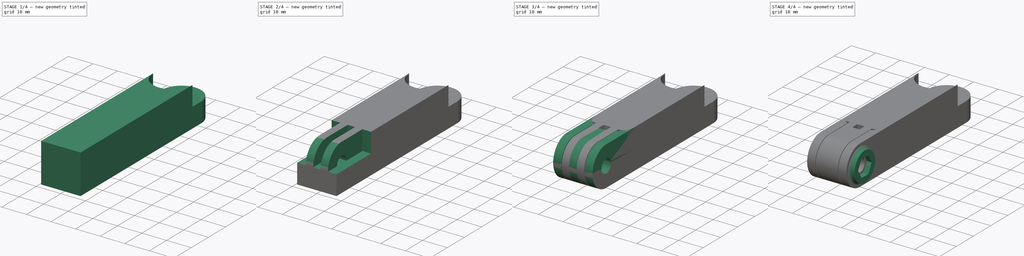
[diagram: build sequence overview — one tinted view per stage of 4, left to right]
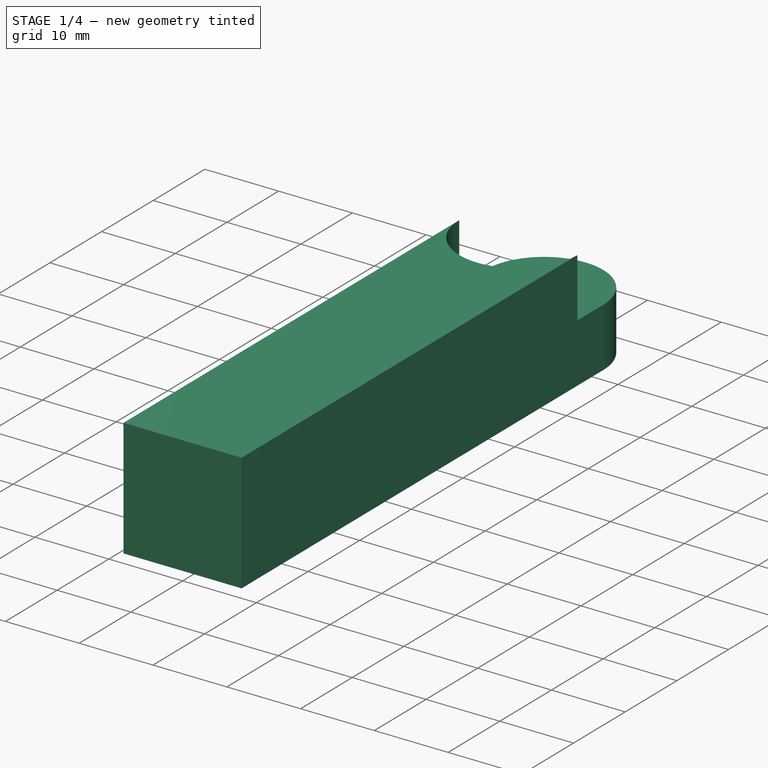
[diagram: stage 1 of 4 — iso view after this stage's code; geometry added in this stage tinted green]
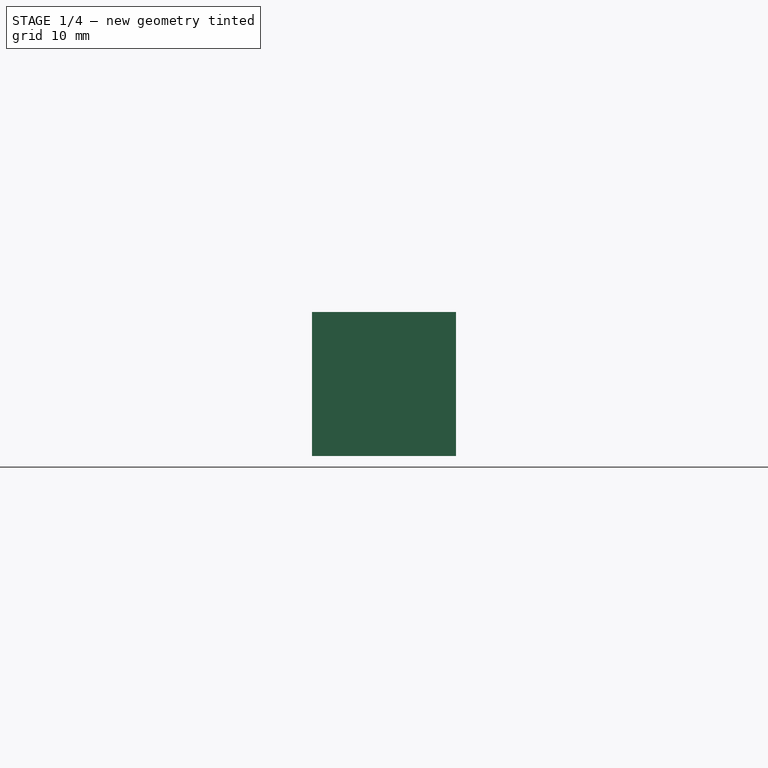
[diagram: stage 1 of 4 — front view after this stage's code; geometry added in this stage tinted green]
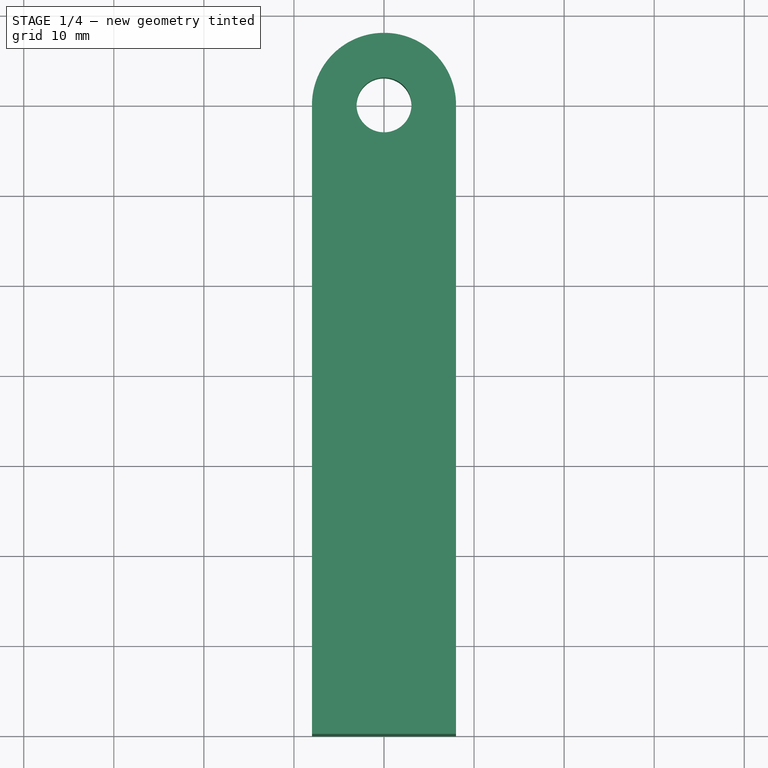
[diagram: stage 1 of 4 — top view after this stage's code; geometry added in this stage tinted green]
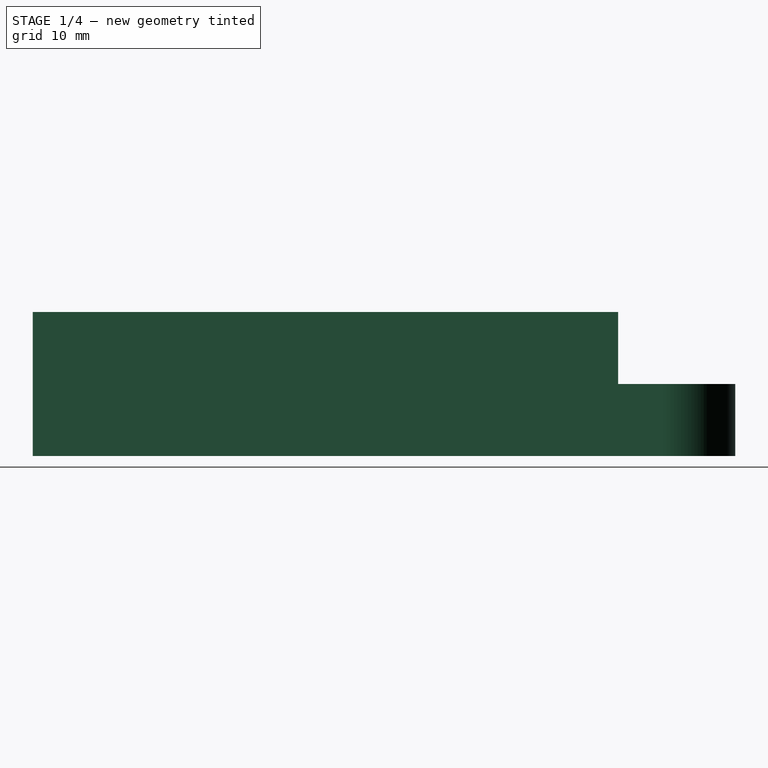
[diagram: stage 1 of 4 — right view after this stage's code; geometry added in this stage tinted green]
FCSTD DOCUMENT  (FreeCAD 0.22R38127 (Git))
Label: gopro angle arm
License: All rights reserved
LicenseURL: http://en.wikipedia.org/wiki/All_rights_reserved
objects: Sketcher::SketchObject×9, PartDesign::Pad×5, PartDesign::Pocket×4, PartDesign::Body×2, PartDesign::Plane×1, PartDesign::Fillet×1
note: 32 computed .brp shape members not serialized (recipe doc carries the construction recipe); baked Part::Feature solids carry a one-line shape summary decoded from their .brp

FEATURE [PartDesign::Body] Body  label="upper"
  AllowCompound = false
  Group = -> [Sketch,Pad,Sketch002,Pad001,Sketch003,Pocket,Sketch004,Pocket001,DatumPlane,Sketch005,Pad002,Fillet]
  Origin = -> Origin
  Tip = -> Fillet
FEATURE [Sketcher::SketchObject] Sketch006
  AttachmentSupport = -> [XY_Plane001]
  FullyConstrained = true
  MapMode = 5
  sketch-geometry (6):
    g0: LineSegment StartX=8 StartY=0 StartZ=0 EndX=-8 EndY=0 EndZ=0
    g1: LineSegment StartX=-8 StartY=0 StartZ=0 EndX=-8 EndY=70 EndZ=0
    g2: LineSegment StartX=8 StartY=0 StartZ=0 EndX=8 EndY=70 EndZ=0
    g3: ArcOfCircle CenterX=0 CenterY=70 CenterZ=0 NormalX=0 NormalY=0 NormalZ=1 AngleXU=0 Radius=8 StartAngle=4e-16 EndAngle=3.14159
    g4: Circle CenterX=0 CenterY=70 CenterZ=0 NormalX=0 NormalY=0 NormalZ=1 AngleXU=0 Radius=3.05
    g5: GeomPoint X=0 Y=70 Z=0
  constraints (14):
    c: Coincident(g0,g1)
    c: Vertical(g1)
    c: Coincident(g0,g2)
    c: Vertical(g2)
    c: PointOnObject(g3,g-2)
    c: Tangent(g3,g1) = 1.5708
    c: Tangent(g3,g2) = -1.5708
    c: DistanceY(g1,g1) = 70
    c: Horizontal(g0)
    c: PointOnObject(g0,g-1)
    c: DistanceX(g0,g0) = 16
    c: Coincident(g4,g3)
    c: Diameter(g4) = 6.1
    c: Coincident(g5,g3)
FEATURE [PartDesign::Pad] Pad003
  Direction = (0,0,1)
  Length = 8
  Length2 = 10
  Profile = -> Sketch006
  ReferenceAxis = -> Sketch006 [N_Axis]
  Suppressed = false
  Type = 0
FEATURE [Sketcher::SketchObject] Sketch007
  AttachmentSupport = -> [XY_Plane001]
  ExternalGeometry = -> [Pad003]
  FullyConstrained = true
  MapMode = 5
  sketch-geometry (4):
    g0: LineSegment StartX=-8 StartY=65 StartZ=0 EndX=-8 EndY=0 EndZ=0
    g1: LineSegment StartX=-8 StartY=0 StartZ=0 EndX=8 EndY=0 EndZ=0
    g2: LineSegment StartX=8 StartY=0 StartZ=0 EndX=8 EndY=65 EndZ=0
    g3: ArcOfCircle CenterX=0 CenterY=65 CenterZ=0 NormalX=0 NormalY=0 NormalZ=1 AngleXU=0 Radius=8 StartAngle=3.14159 EndAngle=6.28319
  constraints (12):
    c: Coincident(g0,g1)
    c: Coincident(g1,g2)
    c: Vertical(g0)
    c: Vertical(g2)
    c: Horizontal(g1)
    c: Coincident(g1,g-4)
    c: Coincident(g0,g3)
    c: Coincident(g3,g2)
    c: Horizontal(g2,g0)
    c: Horizontal(g0,g3)
    c: PointOnObject(g3,g-2)
    c: DistanceY(g-1,g3) = 65
FEATURE [PartDesign::Pad] Pad004
  BaseFeature = -> Pad003
  Direction = (0,0,1)
  Length = 16
  Length2 = 10
  Profile = -> Sketch007
  ReferenceAxis = -> Sketch007 [N_Axis]
  Suppressed = false
  Type = 0
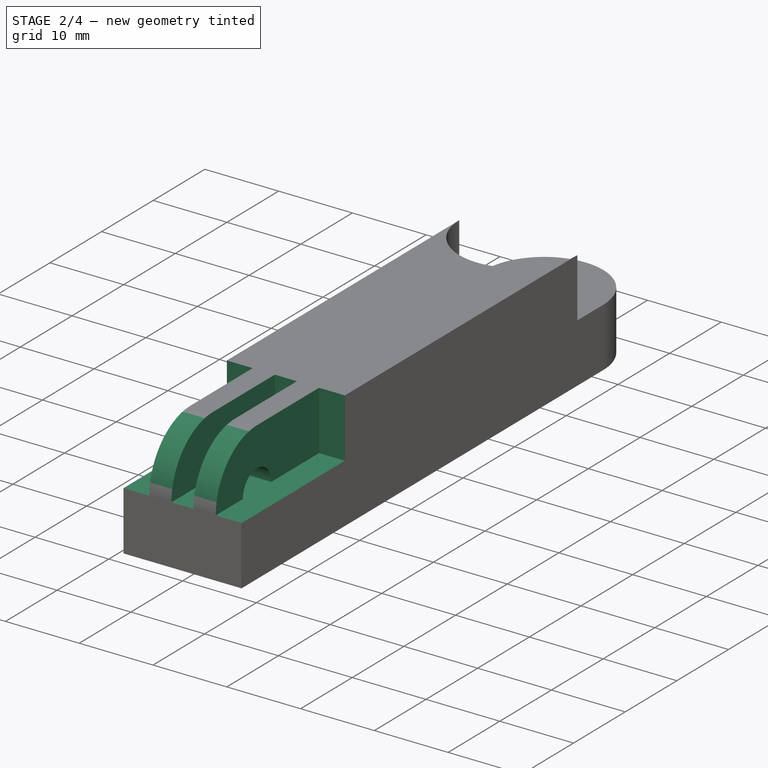
[diagram: stage 2 of 4 — iso view after this stage's code; geometry added in this stage tinted green]
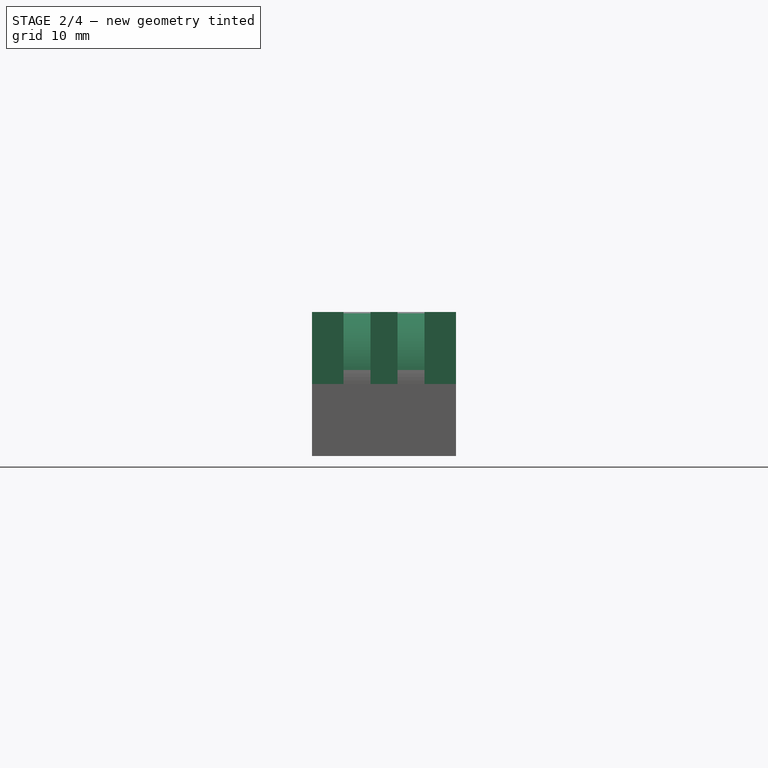
[diagram: stage 2 of 4 — front view after this stage's code; geometry added in this stage tinted green]
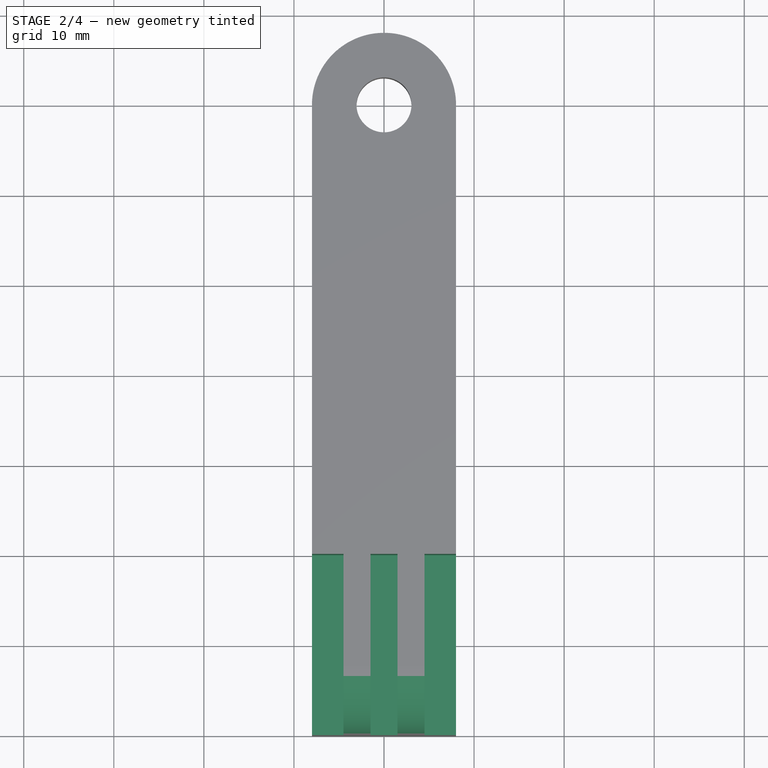
[diagram: stage 2 of 4 — top view after this stage's code; geometry added in this stage tinted green]
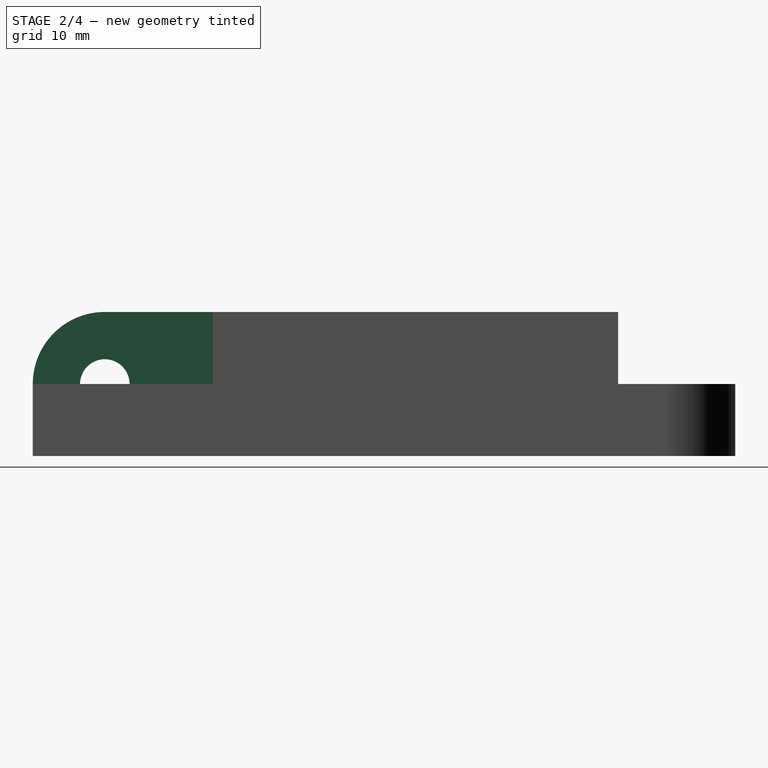
[diagram: stage 2 of 4 — right view after this stage's code; geometry added in this stage tinted green]
FEATURE [Sketcher::SketchObject] Sketch
  AttachmentSupport = -> [XY_Plane]
  FullyConstrained = true
  MapMode = 5
  sketch-geometry (6):
    g0: LineSegment StartX=8 StartY=0 StartZ=0 EndX=-8 EndY=0 EndZ=0
    g1: LineSegment StartX=-8 StartY=0 StartZ=0 EndX=-8 EndY=30 EndZ=0
    g2: LineSegment StartX=8 StartY=0 StartZ=0 EndX=8 EndY=30 EndZ=0
    g3: ArcOfCircle CenterX=0 CenterY=30 CenterZ=0 NormalX=0 NormalY=0 NormalZ=1 AngleXU=0 Radius=8 StartAngle=0 EndAngle=3.14159
    g4: Circle CenterX=0 CenterY=30 CenterZ=0 NormalX=0 NormalY=0 NormalZ=1 AngleXU=0 Radius=3.05
    g5: GeomPoint X=0 Y=30 Z=0
  constraints (14):
    c: Coincident(g0,g1)
    c: Vertical(g1)
    c: Coincident(g0,g2)
    c: Vertical(g2)
    c: PointOnObject(g3,g-2)
    c: Tangent(g3,g1) = 1.5708
    c: Tangent(g3,g2) = -1.5708
    c: DistanceY(g1,g1) = 30
    c: Horizontal(g0)
    c: PointOnObject(g0,g-1)
    c: DistanceX(g0,g0) = 16
    c: Coincident(g4,g3)
    c: Diameter(g4) = 6.1
    c: Coincident(g5,g3)
FEATURE [PartDesign::Pad] Pad
  Direction = (0,0,1)
  Length = 8
  Length2 = 10
  Profile = -> Sketch
  ReferenceAxis = -> Sketch [N_Axis]
  Suppressed = false
  Type = 0
FEATURE [Sketcher::SketchObject] Sketch008
  AttachmentSupport = -> [XY_Plane001]
  ExternalGeometry = -> [Pad004]
  FullyConstrained = true
  MapMode = 5
  sketch-geometry (12):
    g0: LineSegment StartX=4.5 StartY=0 StartZ=0 EndX=4.5 EndY=20 EndZ=0
    g1: LineSegment StartX=-4.5 StartY=20 StartZ=0 EndX=-4.5 EndY=0 EndZ=0
    g2: LineSegment StartX=-4.5 StartY=20 StartZ=0 EndX=-8 EndY=20 EndZ=0
    g3: LineSegment StartX=-8 StartY=20 StartZ=0 EndX=-8 EndY=0 EndZ=0
    g4: LineSegment StartX=4.5 StartY=20 StartZ=0 EndX=8 EndY=20 EndZ=0
    g5: LineSegment StartX=8 StartY=20 StartZ=0 EndX=8 EndY=0 EndZ=0
    g6: LineSegment StartX=-1.5 StartY=0 StartZ=0 EndX=-1.5 EndY=20 EndZ=0
    g7: LineSegment StartX=-1.5 StartY=20 StartZ=0 EndX=1.5 EndY=20 EndZ=0
    g8: LineSegment StartX=1.5 StartY=20 StartZ=0 EndX=1.5 EndY=0 EndZ=0
    g9: LineSegment StartX=-4.5 StartY=0 StartZ=0 EndX=-8 EndY=0 EndZ=0
    g10: LineSegment StartX=4.5 StartY=0 StartZ=0 EndX=8 EndY=0 EndZ=0
    g11: LineSegment StartX=-1.5 StartY=0 StartZ=0 EndX=1.5 EndY=0 EndZ=0
  constraints (32):
    c: PointOnObject(g0,g-1)
    c: Vertical(g0)
    c: PointOnObject(g6,g-1)
    c: PointOnObject(g1,g-1)
    c: Vertical(g1)
    c: Symmetric(g1,g0,g-2)
    c: DistanceY(g1,g1) = 20
    c: Coincident(g2,g1)
    c: PointOnObject(g2,g-4)
    c: Horizontal(g2)
    c: Coincident(g3,g2)
    c: Coincident(g3,g-4)
    c: Coincident(g4,g0)
    c: PointOnObject(g4,g-3)
    c: Horizontal(g4)
    c: Coincident(g5,g4)
    c: Coincident(g5,g-3)
    c: Vertical(g6)
    c: Coincident(g7,g6)
    c: Horizontal(g7)
    c: Coincident(g8,g7)
    c: Vertical(g8)
    c: Horizontal(g6,g1)
    c: Symmetric(g6,g8,g-2)
    c: Coincident(g9,g1)
    c: Coincident(g9,g3)
    c: Coincident(g10,g0)
    c: Coincident(g10,g5)
    c: Coincident(g11,g6)
    c: Coincident(g11,g8)
    c: DistanceX(g1,g6) = 3
    c: DistanceX(g6,g8) = 3
FEATURE [PartDesign::Pocket] Pocket002
  BaseFeature = -> Pad004
  Direction = (0,0,-1)
  Length = 5
  Length2 = 5
  Midplane = true
  Profile = -> Sketch008
  ReferenceAxis = -> Sketch008 [N_Axis]
  Suppressed = false
  Type = 1
FEATURE [Sketcher::SketchObject] Sketch009
  AttachmentSupport = -> [YZ_Plane001]
  ExternalGeometry = -> [Pocket002]
  FullyConstrained = true
  MapMode = 5
  Placement = pos=(0,0,0) rot=(0.57735,0.57735,0.57735;2.0944rad)
  sketch-geometry (5):
    g0: Circle CenterX=8 CenterY=8 CenterZ=0 NormalX=0 NormalY=0 NormalZ=1 AngleXU=0 Radius=2.75
    g1: ArcOfCircle CenterX=8 CenterY=8 CenterZ=0 NormalX=0 NormalY=0 NormalZ=1 AngleXU=0 Radius=8 StartAngle=1.5708 EndAngle=4.71239
    g2: LineSegment StartX=8 StartY=16 StartZ=0 EndX=0 EndY=16 EndZ=0
    g3: LineSegment StartX=0 StartY=16 StartZ=0 EndX=0 EndY=0 EndZ=0
    g4: LineSegment StartX=0 StartY=0 StartZ=0 EndX=8 EndY=0 EndZ=0
  constraints (14):
    c: Diameter(g0) = 5.5
    c: DistanceY(g-1,g0) = 8
    c: DistanceX(g-1,g0) = 8
    c: Coincident(g1,g0)
    c: PointOnObject(g1,g-1)
    c: Vertical(g1,g0)
    c: Vertical(g1,g0)
    c: Coincident(g1,g2)
    c: Coincident(g2,g3)
    c: Coincident(g3,g-1)
    c: Vertical(g3)
    c: Coincident(g3,g4)
    c: Coincident(g4,g1)
    c: Horizontal(g2)
FEATURE [PartDesign::Pocket] Pocket003
  BaseFeature = -> Pocket002
  Direction = (-1,0,0)
  Length = 5
  Length2 = 5
  Midplane = true
  Profile = -> Sketch009
  ReferenceAxis = -> Sketch009 [N_Axis]
  Suppressed = false
  Type = 1
FEATURE [PartDesign::Body] Body001  label="lower"
  AllowCompound = false
  Group = -> [Sketch006,Pad003,Sketch007,Pad004,Sketch008,Pocket002,Sketch009,Pocket003]
  Origin = -> Origin001
  Tip = -> Pocket003
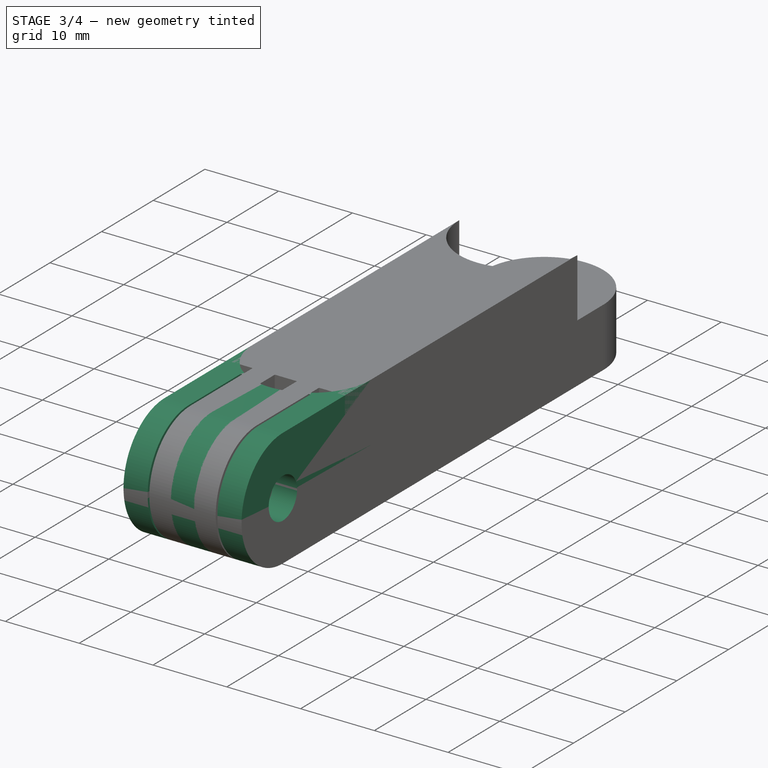
[diagram: stage 3 of 4 — iso view after this stage's code; geometry added in this stage tinted green]
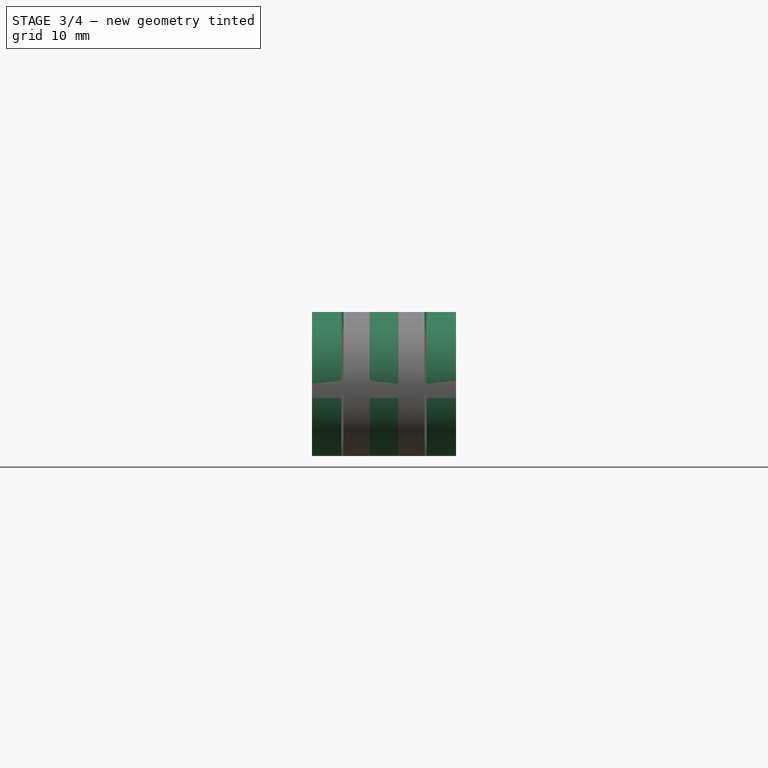
[diagram: stage 3 of 4 — front view after this stage's code; geometry added in this stage tinted green]
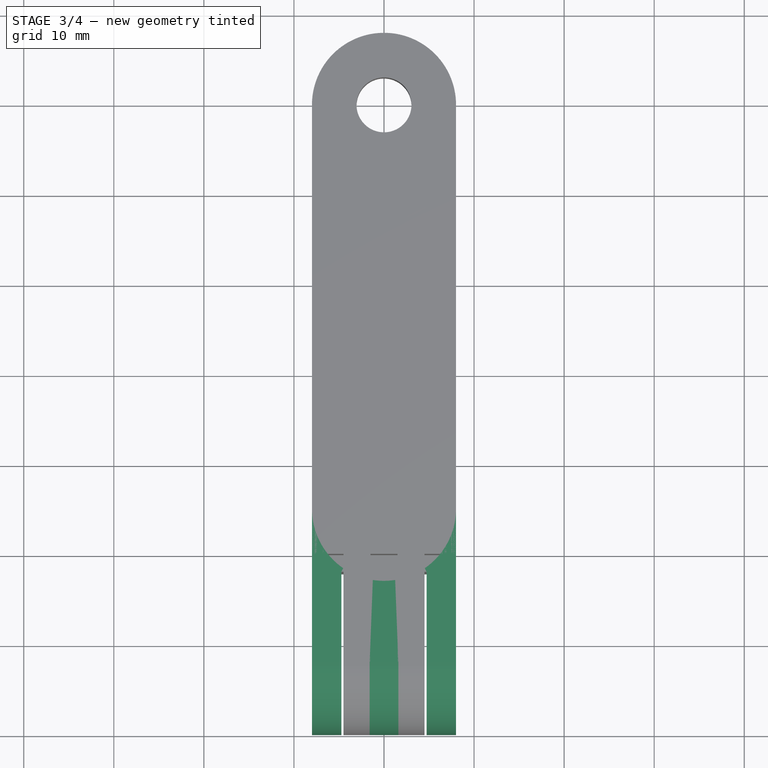
[diagram: stage 3 of 4 — top view after this stage's code; geometry added in this stage tinted green]
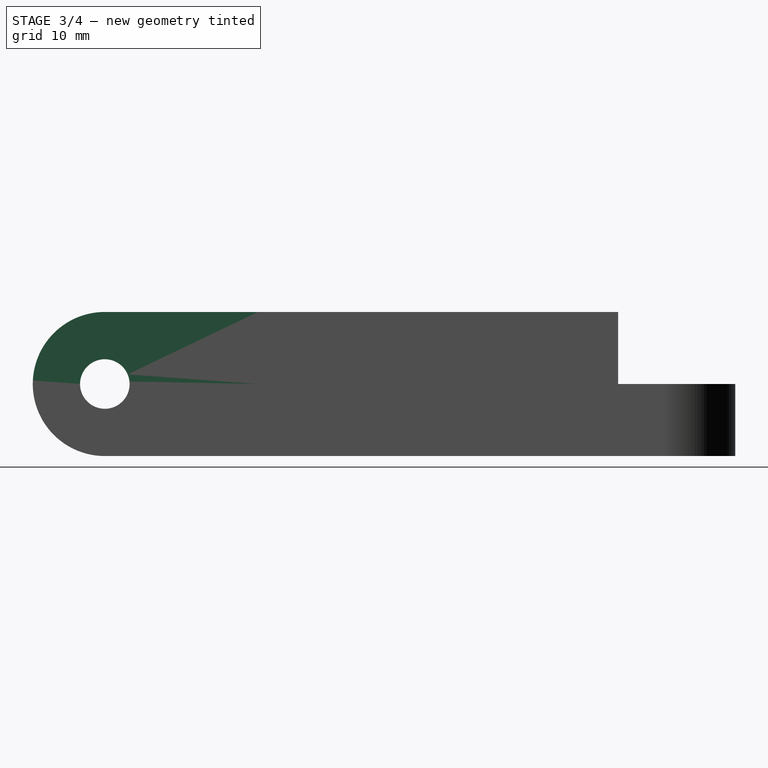
[diagram: stage 3 of 4 — right view after this stage's code; geometry added in this stage tinted green]
FEATURE [Sketcher::SketchObject] Sketch002
  AttachmentSupport = -> [XY_Plane]
  ExternalGeometry = -> [Pad]
  FullyConstrained = true
  MapMode = 5
  sketch-geometry (4):
    g0: LineSegment StartX=-8 StartY=25 StartZ=0 EndX=-8 EndY=0 EndZ=0
    g1: LineSegment StartX=-8 StartY=0 StartZ=0 EndX=8 EndY=0 EndZ=0
    g2: LineSegment StartX=8 StartY=0 StartZ=0 EndX=8 EndY=25 EndZ=0
    g3: ArcOfCircle CenterX=0 CenterY=25 CenterZ=0 NormalX=0 NormalY=0 NormalZ=1 AngleXU=0 Radius=8 StartAngle=3.14159 EndAngle=6.28319
  constraints (12):
    c: Coincident(g0,g1)
    c: Coincident(g1,g2)
    c: Vertical(g0)
    c: Vertical(g2)
    c: Horizontal(g1)
    c: Coincident(g1,g-4)
    c: Coincident(g0,g3)
    c: Coincident(g3,g2)
    c: Horizontal(g2,g0)
    c: Horizontal(g0,g3)
    c: PointOnObject(g3,g-2)
    c: DistanceY(g-1,g3) = 25
FEATURE [PartDesign::Pad] Pad001
  BaseFeature = -> Pad
  Direction = (0,0,1)
  Length = 16
  Length2 = 10
  Profile = -> Sketch002
  ReferenceAxis = -> Sketch002 [N_Axis]
  Suppressed = false
  Type = 0
FEATURE [Sketcher::SketchObject] Sketch003
  AttachmentSupport = -> [XY_Plane]
  ExternalGeometry = -> [Pad001]
  FullyConstrained = true
  MapMode = 5
  sketch-geometry (8):
    g0: LineSegment StartX=4.73 StartY=0 StartZ=0 EndX=4.73 EndY=18 EndZ=0
    g1: LineSegment StartX=4.73 StartY=18 StartZ=0 EndX=1.59 EndY=18 EndZ=0
    g2: LineSegment StartX=1.59 StartY=18 StartZ=0 EndX=1.59 EndY=0 EndZ=0
    g3: LineSegment StartX=-1.59 StartY=0 StartZ=0 EndX=-1.59 EndY=18 EndZ=0
    g4: LineSegment StartX=-1.59 StartY=18 StartZ=0 EndX=-4.73 EndY=18 EndZ=0
    g5: LineSegment StartX=-4.73 StartY=18 StartZ=0 EndX=-4.73 EndY=0 EndZ=0
    g6: LineSegment StartX=-4.73 StartY=0 StartZ=0 EndX=-1.59 EndY=0 EndZ=0
    g7: LineSegment StartX=1.59 StartY=0 StartZ=0 EndX=4.73 EndY=0 EndZ=0
  constraints (22):
    c: PointOnObject(g0,g-1)
    c: Vertical(g0)
    c: Coincident(g0,g1)
    c: Coincident(g1,g2)
    c: PointOnObject(g2,g-1)
    c: Vertical(g2)
    c: PointOnObject(g3,g-1)
    c: Vertical(g3)
    c: Coincident(g3,g4)
    c: Coincident(g4,g5)
    c: PointOnObject(g5,g-1)
    c: Vertical(g5)
    c: Symmetric(g3,g1,g-2)
    c: Horizontal(g4)
    c: Symmetric(g4,g0,g-2)
    c: Coincident(g6,g5)
    c: Coincident(g6,g3)
    c: Coincident(g7,g2)
    c: Coincident(g7,g0)
    c: DistanceX(g3,g1) = 3.18
    c: DistanceX(g4,g4) = 3.14
    c: DistanceY(g5,g5) = 18
FEATURE [PartDesign::Pocket] Pocket
  BaseFeature = -> Pad001
  Direction = (0,0,-1)
  Length = 5
  Length2 = 5
  Midplane = true
  Profile = -> Sketch003
  ReferenceAxis = -> Sketch003 [N_Axis]
  Suppressed = false
  Type = 1
FEATURE [Sketcher::SketchObject] Sketch004
  AttachmentSupport = -> [YZ_Plane]
  ExternalGeometry = -> [Pocket]
  FullyConstrained = true
  MapMode = 5
  Placement = pos=(0,0,0) rot=(0.57735,0.57735,0.57735;2.0944rad)
  sketch-geometry (5):
    g0: ArcOfCircle CenterX=8 CenterY=8 CenterZ=0 NormalX=0 NormalY=0 NormalZ=1 AngleXU=0 Radius=8 StartAngle=1.5708 EndAngle=4.71239
    g1: LineSegment StartX=0 StartY=16 StartZ=0 EndX=0 EndY=0 EndZ=0
    g2: LineSegment StartX=0 StartY=0 StartZ=0 EndX=8 EndY=0 EndZ=0
    g3: Circle CenterX=8 CenterY=8 CenterZ=0 NormalX=0 NormalY=0 NormalZ=1 AngleXU=0 Radius=2.75
    g4: LineSegment StartX=0 StartY=16 StartZ=0 EndX=8 EndY=16 EndZ=0
  constraints (11):
    c: Coincident(g1,g2)
    c: Horizontal(g2)
    c: Tangent(g2,g0) = -1.5708
    c: Vertical(g0,g0)
    c: Coincident(g-1,g1)
    c: Coincident(g3,g0)
    c: Diameter(g3) = 5.5
    c: DistanceX(g1,g0) = 8
    c: Coincident(g1,g-6)
    c: Coincident(g4,g1)
    c: Tangent(g4,g0) = 1.5708
FEATURE [PartDesign::Pocket] Pocket001
  BaseFeature = -> Pocket
  Direction = (-1,0,0)
  Length = 5
  Length2 = 5
  Midplane = true
  Profile = -> Sketch004
  ReferenceAxis = -> Sketch004 [N_Axis]
  Suppressed = false
  Type = 1
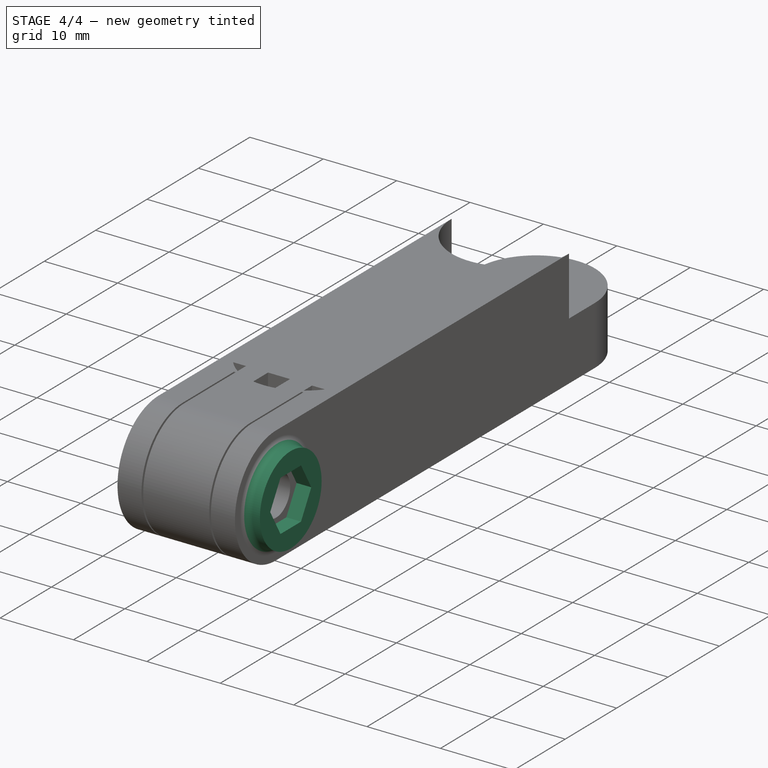
[diagram: stage 4 of 4 — iso view after this stage's code; geometry added in this stage tinted green]
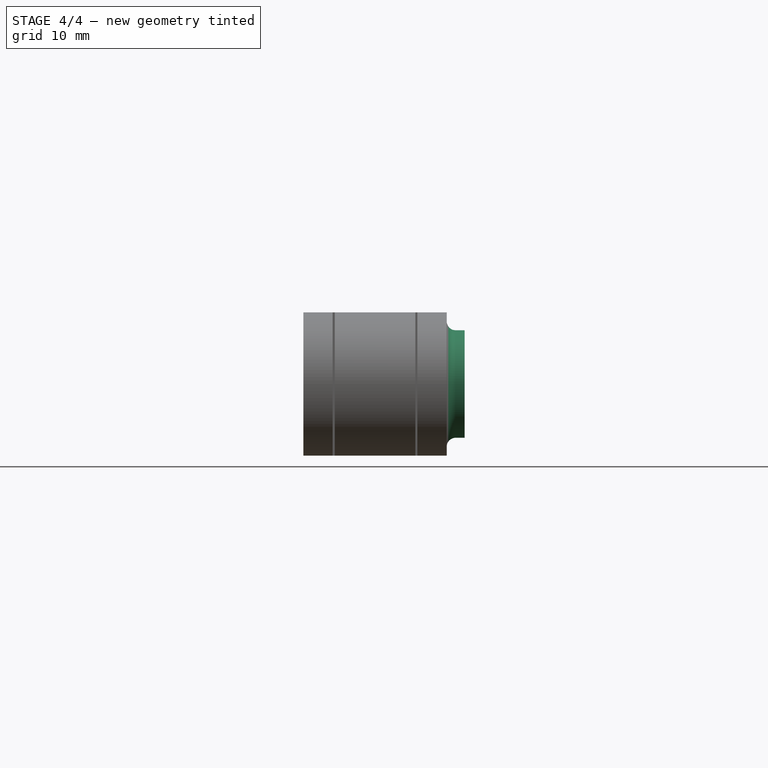
[diagram: stage 4 of 4 — front view after this stage's code; geometry added in this stage tinted green]
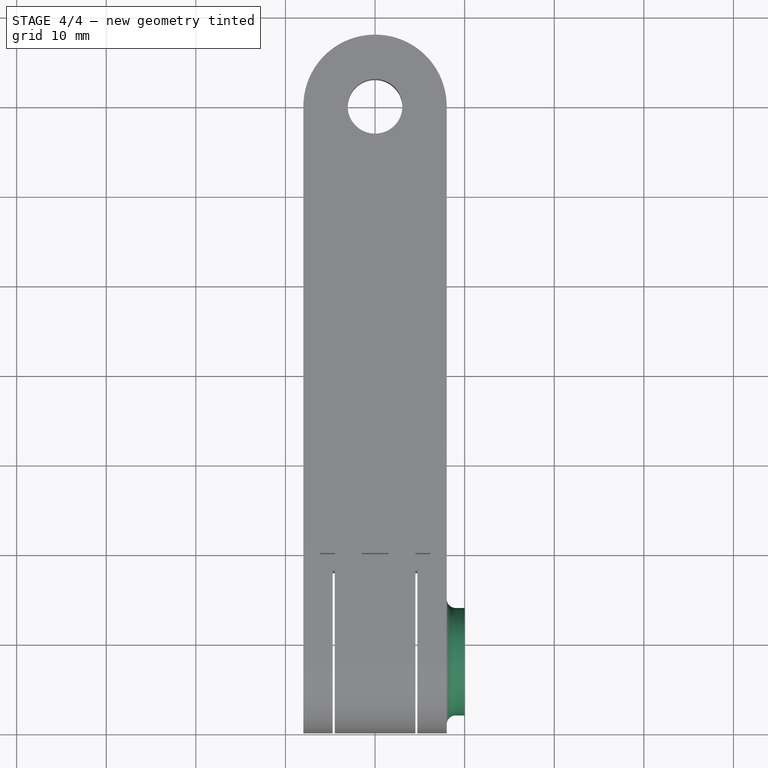
[diagram: stage 4 of 4 — top view after this stage's code; geometry added in this stage tinted green]
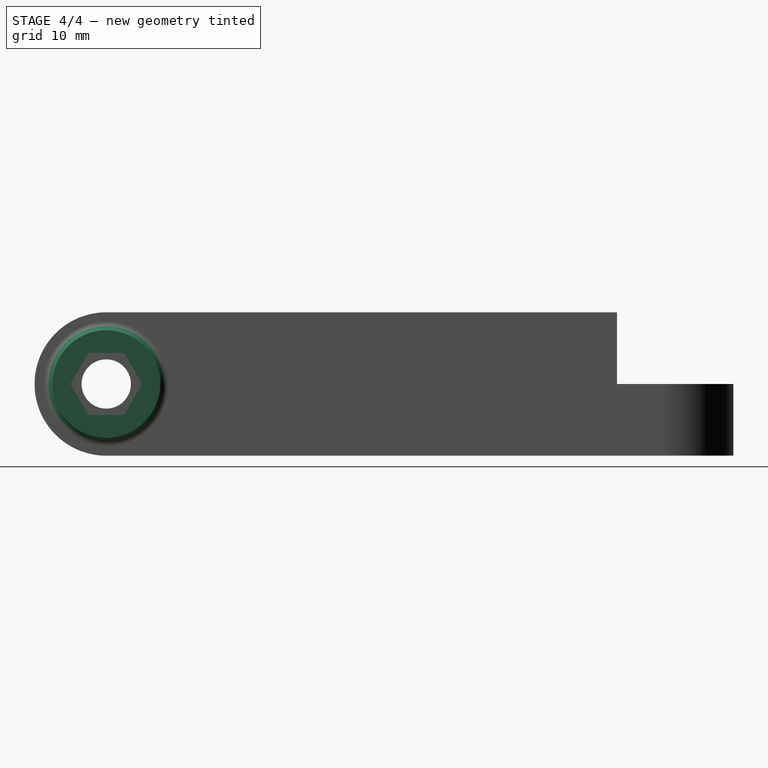
[diagram: stage 4 of 4 — right view after this stage's code; geometry added in this stage tinted green]
FEATURE [PartDesign::Plane] DatumPlane
  AttachmentSupport = -> [Pocket001]
  Length = 74.1614
  MapMode = 5
  Placement = pos=(8,0,0) rot=(0.57735,0.57735,0.57735;2.0944rad)
  ResizeMode = 0
  Width = 61.2198
FEATURE [Sketcher::SketchObject] Sketch005
  AttachmentSupport = -> [DatumPlane]
  ExternalGeometry = -> [Pocket001]
  FullyConstrained = false
  MapMode = 5
  Placement = pos=(8,0,0) rot=(0.57735,0.57735,0.57735;2.0944rad)
  sketch-geometry (8):
    g0: Circle CenterX=8 CenterY=8 CenterZ=0 NormalX=0 NormalY=0 NormalZ=1 AngleXU=0 Radius=6
    g1: LineSegment StartX=10 StartY=4.5359 StartZ=0 EndX=12 EndY=8 EndZ=0
    g2: LineSegment StartX=12 StartY=8 StartZ=0 EndX=10 EndY=11.4641 EndZ=0
    g3: LineSegment StartX=10 StartY=11.4641 StartZ=0 EndX=6 EndY=11.4641 EndZ=0
    g4: LineSegment StartX=6 StartY=11.4641 StartZ=0 EndX=4 EndY=8 EndZ=0
    g5: LineSegment StartX=4 StartY=8 StartZ=0 EndX=6 EndY=4.5359 EndZ=0
    g6: LineSegment StartX=6 StartY=4.5359 StartZ=0 EndX=10 EndY=4.5359 EndZ=0
    g7: Circle CenterX=8 CenterY=8 CenterZ=0 NormalX=0 NormalY=0 NormalZ=1 AngleXU=0 Radius=4
  constraints (17):
    c: Coincident(g1,g2)
    c: Coincident(g2,g3)
    c: Coincident(g3,g4)
    c: Coincident(g4,g5)
    c: Coincident(g5,g6)
    c: Coincident(g6,g1)
    c: Equal(g1, g2-g6) x5
    c: PointOnObject(g1,g7)
    c: PointOnObject(g2,g7)
    c: PointOnObject(g3,g7)
    c: PointOnObject(g4,g7)
    c: PointOnObject(g5,g7)
    c: PointOnObject(g6,g7)
    c: Coincident(g7,g0)
    c: Diameter(g7) = 8
    c: Diameter(g0) = 12
    c: Horizontal(g1,g4)
FEATURE [PartDesign::Pad] Pad002
  BaseFeature = -> Pocket001
  Direction = (1,0,0)
  Length = 2
  Length2 = 10
  Profile = -> Sketch005
  ReferenceAxis = -> Sketch005 [N_Axis]
  Suppressed = false
  Type = 0
FEATURE [PartDesign::Fillet] Fillet
  Base = -> Pad002 [Edge9]
  BaseFeature = -> Pad002
  Radius = 1
  SupportTransform = false
  Suppressed = false
  UseAllEdges = false
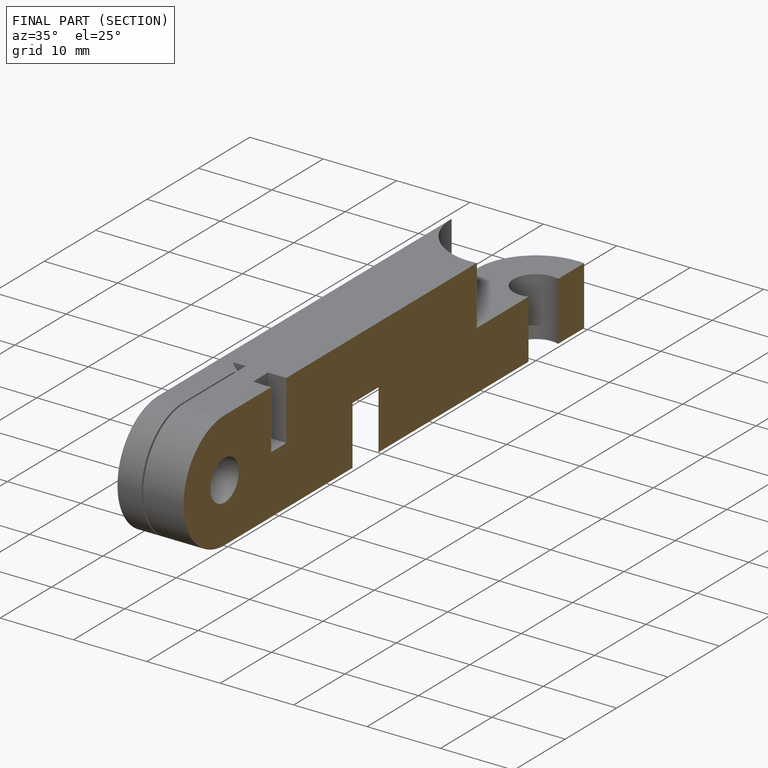
[diagram: finished part — half-section view (interior)]
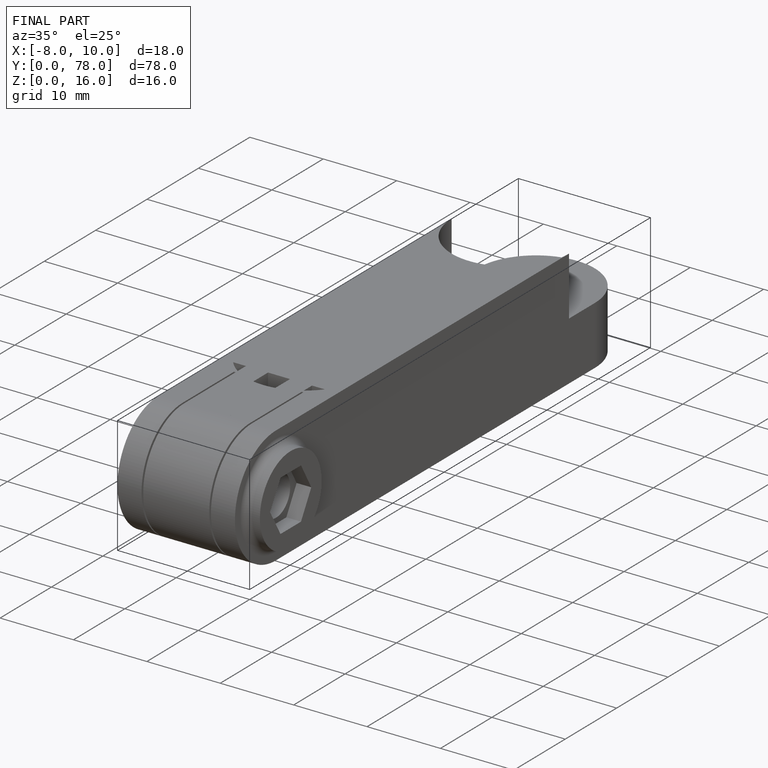
[diagram: finished part — iso view with bounding-box wireframe]
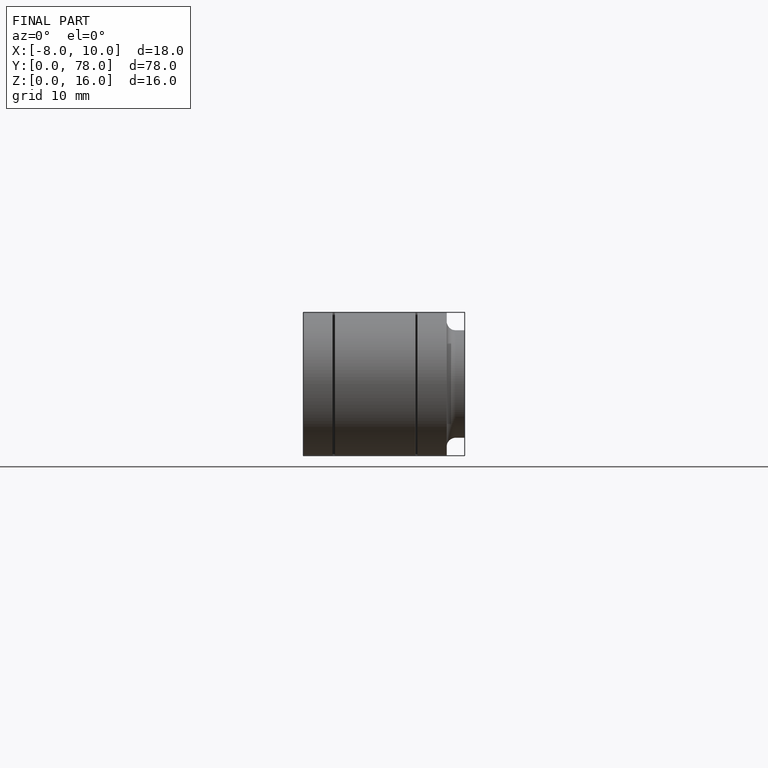
[diagram: finished part — front view with bounding-box wireframe]
